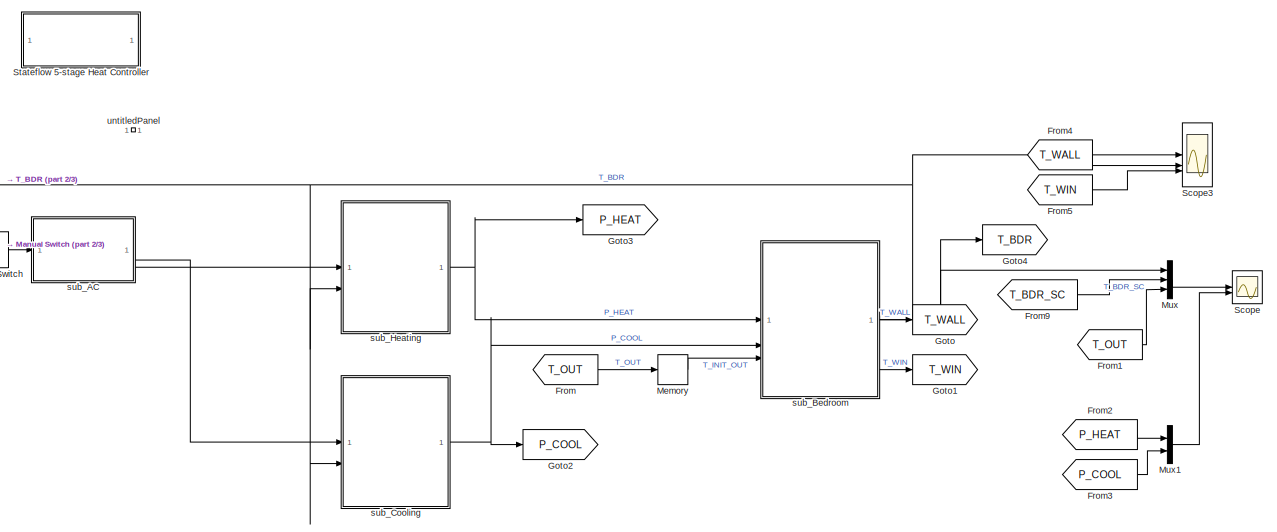
[diagram: root canvas - part 1/3, full width, top band]
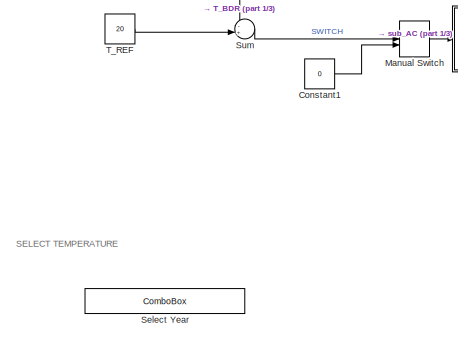
[diagram: root canvas - part 2/3, middle left region]
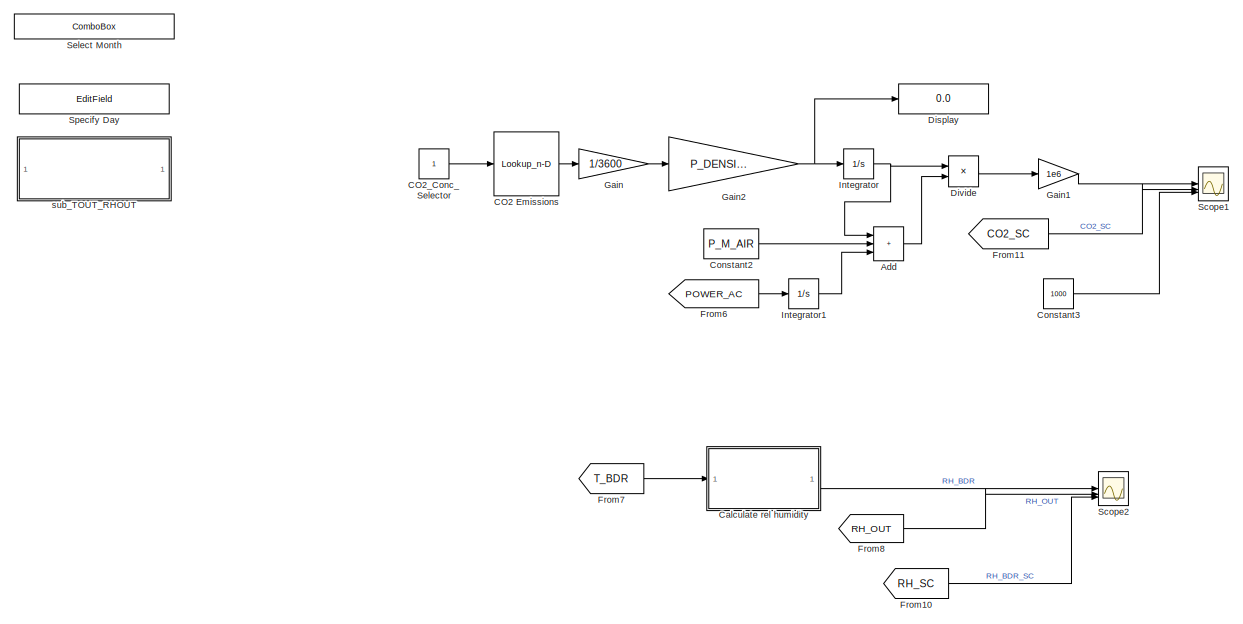
[diagram: root canvas - part 3/3, full width, bottom band]
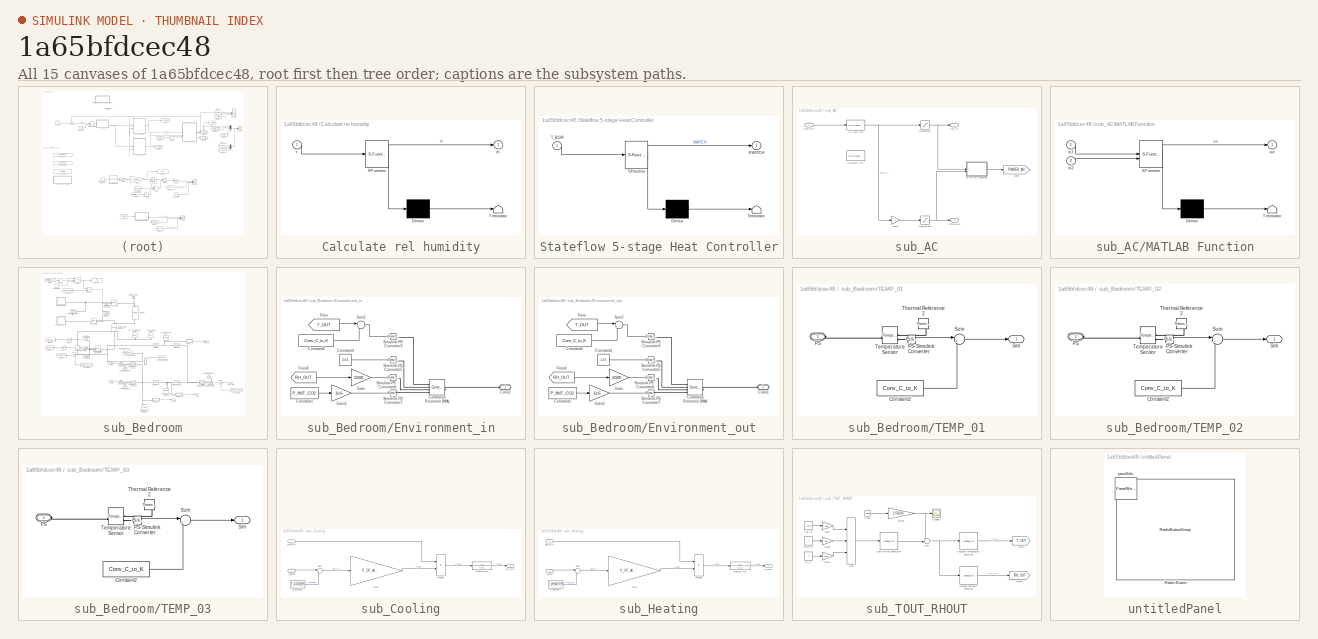
[diagram: thumbnail index - all 15 canvases of the model, root first then tree order]
MODEL slx_1a65bfdcec48
KIND model
CONFIG AbsTol = auto
CONFIG EnableMultiTasking = off
CONFIG FixedStep = 1
CONFIG InitFcn = PARAMETERS;
CONFIG MaxStep = auto
CONFIG MinStep = auto
CONFIG RelTol = 1e-3
CONFIG SampleTimeConstraint = Unconstrained
CONFIG SolverName = FixedStepAuto
CONFIG StartFcn = PARAMETERS;
CONFIG StartTime = 0.0
CONFIG StopTime = 3600*24*7
BLOCK [Sum] Add
  IconShape = rectangular
  Inputs = +++
BLOCK [Lookup_n-D] CO2 Emissions
  BreakpointsForDimension1 = TBL_CO2.Activity_ID
  InputPortMap = u0
  InternalRulePriority = Speed
  NumberOfTableDimensions = 1
  RndMeth = Simplest
  Table = TBL_CO2.CO2_Emiss_cmh
BLOCK [Constant] CO2_Conc_Selector
BLOCK [SubSystem] Calculate rel humidity
  ErrorFcn = Stateflow.Translate.translate
  PermitHierarchicalResolution = ExplicitOnly
  SFBlockType = MATLAB Function
  TreatAsAtomicUnit = on
BLOCK [Demux] Calculate rel humidity/ Demux 
  Outputs = 1
BLOCK [S-Function] Calculate rel humidity/ SFunction 
  EnableBusSupport = on
  FunctionName = sf_sfun
  Parameters = RH_INIT_BDR,T_INIT_BDR
  PortCounts = [1 2]
  SFcnIsStateOwnerBlock = off
  SFunctionDeploymentMode = off
  Tag = Stateflow S-Function 3
BLOCK [Terminator] Calculate rel humidity/ Terminator 
BLOCK [Outport] Calculate rel humidity/rh
BLOCK [Inport] Calculate rel humidity/t
BLOCK [Constant] Constant1
  Value = 0
BLOCK [Constant] Constant2
  Value = P_M_AIR
BLOCK [Constant] Constant3
  Value = 1000
BLOCK [Display] Display
  Decimation = 1
BLOCK [Product] Divide
  Inputs = */
BLOCK [From] From
  GotoTag = T_OUT
  TagVisibility = global
BLOCK [From] From1
  GotoTag = T_OUT
  TagVisibility = global
BLOCK [From] From10
  GotoTag = RH_SC
  NameLocation = top
  TagVisibility = global
BLOCK [From] From11
  GotoTag = CO2_SC
  NameLocation = top
  TagVisibility = global
BLOCK [From] From2
  GotoTag = P_HEAT
BLOCK [From] From3
  GotoTag = P_COOL
BLOCK [From] From4
  GotoTag = T_WALL
BLOCK [From] From5
  GotoTag = T_WIN
BLOCK [From] From6
  GotoTag = POWER_AC
  TagVisibility = global
BLOCK [From] From7
  GotoTag = T_BDR
BLOCK [From] From8
  GotoTag = RH_OUT
  TagVisibility = global
BLOCK [From] From9
  GotoTag = T_BDR_SC
  NameLocation = top
  TagVisibility = global
BLOCK [Gain] Gain
  Gain = 1/3600
BLOCK [Gain] Gain1
  Gain = 1e6
BLOCK [Gain] Gain2
  Gain = P_DENSITY_CO2
BLOCK [Goto] Goto
  GotoTag = T_WALL
BLOCK [Goto] Goto1
  GotoTag = T_WIN
BLOCK [Goto] Goto2
  GotoTag = P_COOL
BLOCK [Goto] Goto3
  GotoTag = P_HEAT
BLOCK [Goto] Goto4
  GotoTag = T_BDR
BLOCK [Integrator] Integrator
BLOCK [Integrator] Integrator1
BLOCK [ManualSwitch] Manual Switch
BLOCK [Memory] Memory
  InitialCondition = T_INIT_OUT
BLOCK [Mux] Mux
  DisplayOption = bar
  Inputs = 3
BLOCK [Mux] Mux1
  DisplayOption = bar
  Inputs = 2
BLOCK [Scope] Scope
  Floating = off
  NumInputPorts = 2
  ScopeSpecificationString = Simulink.scopes.TimeScopeBlockCfg('CurrentConfiguration', extmgr.ConfigurationSet(extmgr.Configuration('Core','General UI',true),extmgr.Configuration('Core','Source UI',true),extmgr.Configuration('Sources','WiredSimulink',true),extmgr.Configuration('Visuals','Time Domain',true,'SerializedDisplays',{struct('MinYLimReal','6.225','MaxYLimReal','37.975','YLabelReal','','MinYLimMag','6.225','MaxYLimMag...<+2164ch>
BLOCK [Scope] Scope1
  Floating = off
  NumInputPorts = 3
  ScopeSpecificationString = Simulink.scopes.TimeScopeBlockCfg('CurrentConfiguration', extmgr.ConfigurationSet(extmgr.Configuration('Core','General UI',true),extmgr.Configuration('Core','Source UI',true),extmgr.Configuration('Sources','WiredSimulink',true,'DataLoggingVariableName','ScopeData1'),extmgr.Configuration('Visuals','Time Domain',true,'SerializedDisplays',{struct('MinYLimReal','-576.04057','MaxYLimReal','5184.36516',...<+1474ch>
BLOCK [Scope] Scope2
  Floating = off
  NumInputPorts = 3
  ScopeSpecificationString = Simulink.scopes.TimeScopeBlockCfg('CurrentConfiguration', extmgr.ConfigurationSet(extmgr.Configuration('Core','General UI',true),extmgr.Configuration('Core','Source UI',true),extmgr.Configuration('Sources','WiredSimulink',true,'DataLoggingVariableName','ScopeData1'),extmgr.Configuration('Visuals','Time Domain',true,'SerializedDisplays',{struct('MinYLimReal','-2.97611','MaxYLimReal','102.5529','YLa...<+1500ch>
BLOCK [Scope] Scope3
  Floating = off
  NumInputPorts = 3
  ScopeSpecificationString = Simulink.scopes.TimeScopeBlockCfg('CurrentConfiguration', extmgr.ConfigurationSet(extmgr.Configuration('Core','General UI',true),extmgr.Configuration('Core','Source UI',true),extmgr.Configuration('Sources','WiredSimulink',true,'DataLoggingVariableName','ScopeData3'),extmgr.Configuration('Visuals','Time Domain',true,'SerializedDisplays',{struct('MinYLimReal','13.23048','MaxYLimReal','28.83399','YLa...<+1444ch>
BLOCK [ComboBox] Select Month
  LabelPosition = Hide
  NameLocation = top
  SelectedLabel = July
BLOCK [ComboBox] Select Year
  LabelPosition = Hide
  NameLocation = top
  SelectedLabel = 2023
BLOCK [EditField] Specify Day
  Alignment = Center
  LabelPosition = Hide
  NameLocation = top
  ShowInitialText = on
BLOCK [SubSystem] Stateflow 5-stage Heat Controller
  ErrorFcn = Stateflow.Translate.translate
  PermitHierarchicalResolution = ExplicitOnly
  SFBlockType = Chart
  TreatAsAtomicUnit = on
BLOCK [Demux] Stateflow 5-stage Heat Controller/ Demux 
  Outputs = 1
BLOCK [S-Function] Stateflow 5-stage Heat Controller/ SFunction 
  EnableBusSupport = on
  FunctionName = sf_sfun
  PortCounts = [1 2]
  SFcnIsStateOwnerBlock = off
  SFunctionDeploymentMode = off
  Tag = Stateflow S-Function 1
BLOCK [Terminator] Stateflow 5-stage Heat Controller/ Terminator 
BLOCK [Outport] Stateflow 5-stage Heat Controller/SWITCH
BLOCK [Inport] Stateflow 5-stage Heat Controller/T_BDR
BLOCK [Sum] Sum
  Inputs = -+|
BLOCK [Constant] T_REF
  Value = 20
BLOCK [SubSystem] sub_AC
BLOCK [Reference] sub_AC/AC Unit (PI)  REF=slpidlib/PID Controller
  LibrarySourceBlock = simulink/Continuous/PID Controller
  SourceBlock = slpidlib/PID Controller
  SourceType = PID 1dof
BLOCK [Reference] sub_AC/COOLER (PI)  REF=slpidlib/PID Controller
  Commented = on
  LibrarySourceBlock = simulink/Continuous/PID Controller
  SourceBlock = slpidlib/PID Controller
  SourceType = PID 1dof
BLOCK [Outport] sub_AC/COOLING
  Port = 2
BLOCK [Gain] sub_AC/Gain
  Gain = -1
BLOCK [Goto] sub_AC/Goto
  GotoTag = POWER_AC
  TagVisibility = global
BLOCK [Outport] sub_AC/HEAT
BLOCK [SubSystem] sub_AC/MATLAB Function
  ErrorFcn = Stateflow.Translate.translate
  PermitHierarchicalResolution = ExplicitOnly
  SFBlockType = MATLAB Function
  TreatAsAtomicUnit = on
BLOCK [Demux] sub_AC/MATLAB Function/ Demux 
  Outputs = 1
BLOCK [S-Function] sub_AC/MATLAB Function/ SFunction 
  EnableBusSupport = on
  FunctionName = sf_sfun
  PortCounts = [2 2]
  SFcnIsStateOwnerBlock = off
  SFunctionDeploymentMode = off
  Tag = Stateflow S-Function 2
BLOCK [Terminator] sub_AC/MATLAB Function/ Terminator 
BLOCK [Inport] sub_AC/MATLAB Function/in1
BLOCK [Inport] sub_AC/MATLAB Function/in2
  Port = 2
BLOCK [Outport] sub_AC/MATLAB Function/out
BLOCK [Inport] sub_AC/SWITCH
BLOCK [Saturate] sub_AC/Saturation
  LowerLimit = 0
  UpperLimit = 1
BLOCK [Saturate] sub_AC/Saturation1
  LowerLimit = 0
  UpperLimit = 1
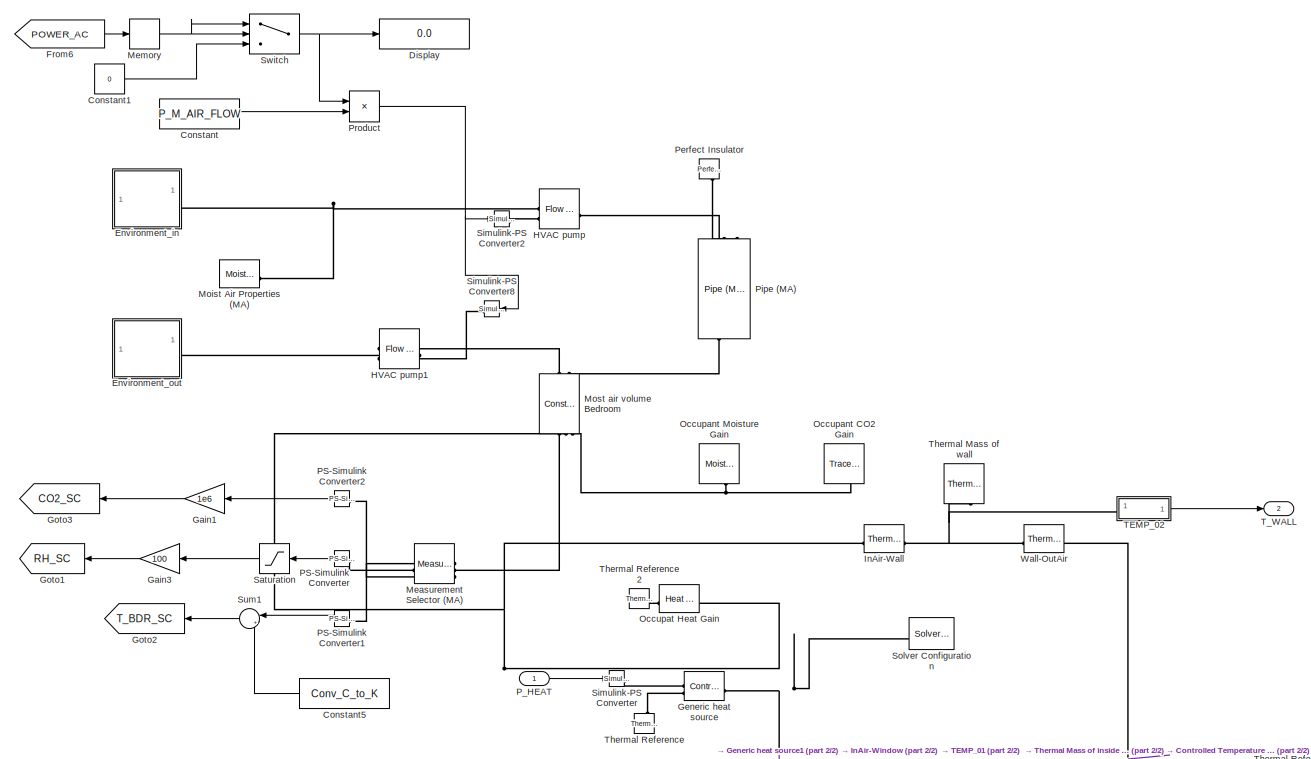
[diagram: sub_Bedroom - part 1/2, full width, middle band]
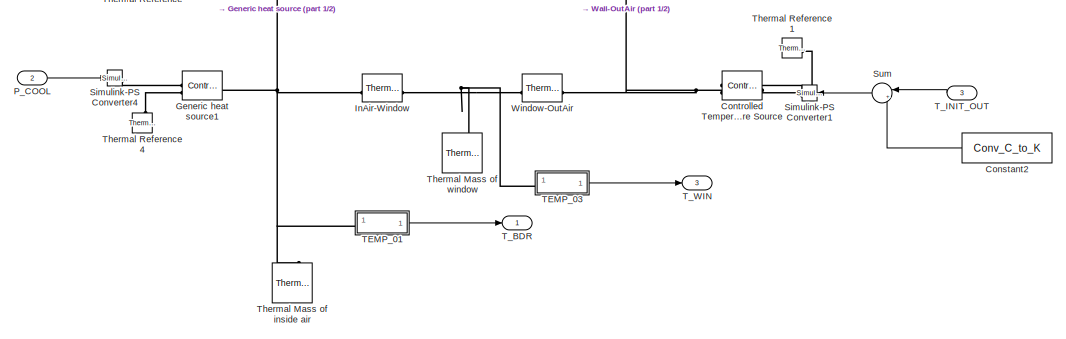
[diagram: sub_Bedroom - part 2/2, bottom center region]
BLOCK [SubSystem] sub_Bedroom
BLOCK [Constant] sub_Bedroom/Constant
  Value = P_M_AIR_FLOW
BLOCK [Constant] sub_Bedroom/Constant1
  Value = 0
BLOCK [Constant] sub_Bedroom/Constant2
  NameLocation = top
  Value = Conv_C_to_K
BLOCK [Constant] sub_Bedroom/Constant5
  NameLocation = top
  Value = Conv_C_to_K
BLOCK [Reference] sub_Bedroom/Controlled Temperature Source  REF=fl_lib/Thermal/Thermal Sources/Controlled
Temperature Source
  NameLocation = top
  SourceBlock = fl_lib/Thermal/Thermal Sources/Controlled\nTemperature Source
  SourceType = Controlled\nTemperature Source
BLOCK [Display] sub_Bedroom/Display
  Decimation = 1
BLOCK [SubSystem] sub_Bedroom/Environment_in
BLOCK [PMIOPort] sub_Bedroom/Environment_in/Conn1
  Side = Left
BLOCK [Constant] sub_Bedroom/Environment_in/Constant1
  Value = P_INIT_CO2
BLOCK [Constant] sub_Bedroom/Environment_in/Constant4
  Value = 1e5
BLOCK [Constant] sub_Bedroom/Environment_in/Constant6
  Value = Conv_C_to_K
BLOCK [Reference] sub_Bedroom/Environment_in/Controlled Reservoir (MA)  REF=fl_lib/Moist Air/Elements/Controlled Reservoir
(MA)
  SourceBlock = fl_lib/Moist Air/Elements/Controlled Reservoir\n(MA)
  SourceType = Controlled Reservoir\n(MA)
BLOCK [From] sub_Bedroom/Environment_in/From
  GotoTag = T_OUT
  TagVisibility = global
BLOCK [From] sub_Bedroom/Environment_in/From8
  GotoTag = RH_OUT
  TagVisibility = global
BLOCK [Gain] sub_Bedroom/Environment_in/Gain
  Gain = 1/100
BLOCK [Gain] sub_Bedroom/Environment_in/Gain2
  Gain = 1e-6
BLOCK [Reference] sub_Bedroom/Environment_in/Simulink-PS Converter3  REF=nesl_utility/Simulink-PS
Converter
  SourceBlock = nesl_utility/Simulink-PS\nConverter
  SourceType = Simulink-PS\nConverter
BLOCK [Reference] sub_Bedroom/Environment_in/Simulink-PS Converter5  REF=nesl_utility/Simulink-PS
Converter
  SourceBlock = nesl_utility/Simulink-PS\nConverter
  SourceType = Simulink-PS\nConverter
BLOCK [Reference] sub_Bedroom/Environment_in/Simulink-PS Converter6  REF=nesl_utility/Simulink-PS
Converter
  SourceBlock = nesl_utility/Simulink-PS\nConverter
  SourceType = Simulink-PS\nConverter
BLOCK [Reference] sub_Bedroom/Environment_in/Simulink-PS Converter7  REF=nesl_utility/Simulink-PS
Converter
  SourceBlock = nesl_utility/Simulink-PS\nConverter
  SourceType = Simulink-PS\nConverter
BLOCK [Sum] sub_Bedroom/Environment_in/Sum2
  Inputs = |++
BLOCK [SubSystem] sub_Bedroom/Environment_out
BLOCK [PMIOPort] sub_Bedroom/Environment_out/Conn1
  Side = Left
BLOCK [Constant] sub_Bedroom/Environment_out/Constant1
  Value = P_INIT_CO2
BLOCK [Constant] sub_Bedroom/Environment_out/Constant4
  Value = 1e5
BLOCK [Constant] sub_Bedroom/Environment_out/Constant6
  Value = Conv_C_to_K
BLOCK [Reference] sub_Bedroom/Environment_out/Controlled Reservoir (MA)  REF=fl_lib/Moist Air/Elements/Controlled Reservoir
(MA)
  SourceBlock = fl_lib/Moist Air/Elements/Controlled Reservoir\n(MA)
  SourceType = Controlled Reservoir\n(MA)
BLOCK [From] sub_Bedroom/Environment_out/From
  GotoTag = T_OUT
  TagVisibility = global
BLOCK [From] sub_Bedroom/Environment_out/From8
  GotoTag = RH_OUT
  TagVisibility = global
BLOCK [Gain] sub_Bedroom/Environment_out/Gain
  Gain = 1/100
BLOCK [Gain] sub_Bedroom/Environment_out/Gain2
  Gain = 1e-6
BLOCK [Reference] sub_Bedroom/Environment_out/Simulink-PS Converter3  REF=nesl_utility/Simulink-PS
Converter
  SourceBlock = nesl_utility/Simulink-PS\nConverter
  SourceType = Simulink-PS\nConverter
BLOCK [Reference] sub_Bedroom/Environment_out/Simulink-PS Converter5  REF=nesl_utility/Simulink-PS
Converter
  SourceBlock = nesl_utility/Simulink-PS\nConverter
  SourceType = Simulink-PS\nConverter
BLOCK [Reference] sub_Bedroom/Environment_out/Simulink-PS Converter6  REF=nesl_utility/Simulink-PS
Converter
  SourceBlock = nesl_utility/Simulink-PS\nConverter
  SourceType = Simulink-PS\nConverter
BLOCK [Reference] sub_Bedroom/Environment_out/Simulink-PS Converter7  REF=nesl_utility/Simulink-PS
Converter
  SourceBlock = nesl_utility/Simulink-PS\nConverter
  SourceType = Simulink-PS\nConverter
BLOCK [Sum] sub_Bedroom/Environment_out/Sum2
  Inputs = |++
BLOCK [From] sub_Bedroom/From6
  GotoTag = POWER_AC
  TagVisibility = global
BLOCK [Gain] sub_Bedroom/Gain1
  Gain = 1e6
BLOCK [Gain] sub_Bedroom/Gain3
  Gain = 100
BLOCK [Reference] sub_Bedroom/Generic heat source  REF=fl_lib/Thermal/Thermal Sources/Controlled Heat Flow
Rate Source
  SourceBlock = fl_lib/Thermal/Thermal Sources/Controlled Heat Flow\nRate Source
  SourceType = Controlled Heat Flow\nRate Source
BLOCK [Reference] sub_Bedroom/Generic heat source1  REF=fl_lib/Thermal/Thermal Sources/Controlled Heat Flow
Rate Source
  SourceBlock = fl_lib/Thermal/Thermal Sources/Controlled Heat Flow\nRate Source
  SourceType = Controlled Heat Flow\nRate Source
BLOCK [Goto] sub_Bedroom/Goto1
  GotoTag = RH_SC
  NameLocation = top
  TagVisibility = global
BLOCK [Goto] sub_Bedroom/Goto2
  GotoTag = T_BDR_SC
  NameLocation = top
  TagVisibility = global
BLOCK [Goto] sub_Bedroom/Goto3
  GotoTag = CO2_SC
  NameLocation = top
  TagVisibility = global
BLOCK [Reference] sub_Bedroom/HVAC pump  REF=fl_lib/Moist Air/Sources/Flow Rate Source
(MA)
  SourceBlock = fl_lib/Moist Air/Sources/Flow Rate Source\n(MA)
  SourceType = Flow Rate Source\n(MA)
BLOCK [Reference] sub_Bedroom/HVAC pump1  REF=fl_lib/Moist Air/Sources/Flow Rate Source
(MA)
  NameLocation = top
  SourceBlock = fl_lib/Moist Air/Sources/Flow Rate Source\n(MA)
  SourceType = Flow Rate Source\n(MA)
BLOCK [Reference] sub_Bedroom/InAir-Wall  REF=fl_lib/Thermal/Thermal Elements/Thermal Resistance
  SourceBlock = fl_lib/Thermal/Thermal Elements/Thermal Resistance
  SourceType = Thermal Resistance
BLOCK [Reference] sub_Bedroom/InAir-Window  REF=fl_lib/Thermal/Thermal Elements/Thermal Resistance
  SourceBlock = fl_lib/Thermal/Thermal Elements/Thermal Resistance
  SourceType = Thermal Resistance
BLOCK [Reference] sub_Bedroom/Measurement Selector (MA)  REF=fl_lib/Moist Air/Sensors/Measurement Selector
(MA)
  NameLocation = top
  SourceBlock = fl_lib/Moist Air/Sensors/Measurement Selector\n(MA)
  SourceType = Measurement Selector\n(MA)
BLOCK [Memory] sub_Bedroom/Memory
BLOCK [Reference] sub_Bedroom/Moist Air Properties (MA)  REF=fl_lib/Moist Air/Utilities/Moist Air Properties
(MA)
  SourceBlock = fl_lib/Moist Air/Utilities/Moist Air Properties\n(MA)
  SourceType = Moist Air Properties\n(MA)
BLOCK [Reference] sub_Bedroom/Most air volume Bedroom  REF=fl_lib/Moist Air/Elements/Constant Volume
Chamber (MA)
  NameLocation = right
  SourceBlock = fl_lib/Moist Air/Elements/Constant Volume\nChamber (MA)
  SourceType = Constant Volume\nChamber (MA)
BLOCK [Reference] sub_Bedroom/Occupant CO2 Gain  REF=fl_lib/Moist Air/Sources/Moisture & Trace Gas
Sources/Trace Gas Source
(MA)
  NameLocation = left
  SourceBlock = fl_lib/Moist Air/Sources/Moisture & Trace Gas\nSources/Trace Gas Source\n(MA)
  SourceType = Trace Gas Source\n(MA)
BLOCK [Reference] sub_Bedroom/Occupant Moisture Gain  REF=fl_lib/Moist Air/Sources/Moisture & Trace Gas
Sources/Moisture Source (MA)
  NameLocation = left
  SourceBlock = fl_lib/Moist Air/Sources/Moisture & Trace Gas\nSources/Moisture Source (MA)
  SourceType = Moisture Source (MA)
BLOCK [Reference] sub_Bedroom/Occupat Heat Gain  REF=fl_lib/Thermal/Thermal Sources/Heat Flow Rate
Source
  SourceBlock = fl_lib/Thermal/Thermal Sources/Heat Flow Rate\nSource
  SourceType = Heat Flow Rate\nSource
BLOCK [Reference] sub_Bedroom/PS-Simulink Converter  REF=nesl_utility/PS-Simulink
Converter
  NameLocation = top
  SourceBlock = nesl_utility/PS-Simulink\nConverter
  SourceType = PS-Simulink\nConverter
BLOCK [Reference] sub_Bedroom/PS-Simulink Converter1  REF=nesl_utility/PS-Simulink
Converter
  NameLocation = top
  SourceBlock = nesl_utility/PS-Simulink\nConverter
  SourceType = PS-Simulink\nConverter
BLOCK [Reference] sub_Bedroom/PS-Simulink Converter2  REF=nesl_utility/PS-Simulink
Converter
  NameLocation = top
  SourceBlock = nesl_utility/PS-Simulink\nConverter
  SourceType = PS-Simulink\nConverter
BLOCK [Inport] sub_Bedroom/P_COOL
  Port = 2
BLOCK [Inport] sub_Bedroom/P_HEAT
BLOCK [Reference] sub_Bedroom/Perfect Insulator  REF=fl_lib/Thermal/Thermal Elements/Perfect Insulator
  NameLocation = left
  SourceBlock = fl_lib/Thermal/Thermal Elements/Perfect Insulator
  SourceType = Perfect Insulator
BLOCK [Reference] sub_Bedroom/Pipe (MA)  REF=fl_lib/Moist Air/Elements/Pipe (MA)
  NameLocation = left
  SourceBlock = fl_lib/Moist Air/Elements/Pipe (MA)
  SourceType = Pipe (MA)
BLOCK [Product] sub_Bedroom/Product
BLOCK [Saturate] sub_Bedroom/Saturation
  LowerLimit = 0
  NameLocation = top
  UpperLimit = 1
BLOCK [Reference] sub_Bedroom/Simulink-PS Converter  REF=nesl_utility/Simulink-PS
Converter
  SourceBlock = nesl_utility/Simulink-PS\nConverter
  SourceType = Simulink-PS\nConverter
BLOCK [Reference] sub_Bedroom/Simulink-PS Converter1  REF=nesl_utility/Simulink-PS
Converter
  NameLocation = top
  SourceBlock = nesl_utility/Simulink-PS\nConverter
  SourceType = Simulink-PS\nConverter
BLOCK [Reference] sub_Bedroom/Simulink-PS Converter2  REF=nesl_utility/Simulink-PS
Converter
  SourceBlock = nesl_utility/Simulink-PS\nConverter
  SourceType = Simulink-PS\nConverter
BLOCK [Reference] sub_Bedroom/Simulink-PS Converter4  REF=nesl_utility/Simulink-PS
Converter
  SourceBlock = nesl_utility/Simulink-PS\nConverter
  SourceType = Simulink-PS\nConverter
BLOCK [Reference] sub_Bedroom/Simulink-PS Converter8  REF=nesl_utility/Simulink-PS
Converter
  NameLocation = top
  SourceBlock = nesl_utility/Simulink-PS\nConverter
  SourceType = Simulink-PS\nConverter
BLOCK [Reference] sub_Bedroom/Solver Configuration  REF=nesl_utility/Solver
Configuration
  NameLocation = top
  SourceBlock = nesl_utility/Solver\nConfiguration
  SourceType = Solver\nConfiguration
BLOCK [Sum] sub_Bedroom/Sum
  Inputs = |++
  NameLocation = top
BLOCK [Sum] sub_Bedroom/Sum1
  Inputs = |+-
  NameLocation = top
BLOCK [Switch] sub_Bedroom/Switch
  Criteria = u2 > Threshold
  InputSameDT = off
  SaturateOnIntegerOverflow = off
BLOCK [SubSystem] sub_Bedroom/TEMP_01
BLOCK [Constant] sub_Bedroom/TEMP_01/Constant2
  Value = Conv_C_to_K
BLOCK [PMIOPort] sub_Bedroom/TEMP_01/PS
  Side = Left
BLOCK [Reference] sub_Bedroom/TEMP_01/PS-Simulink Converter  REF=nesl_utility/PS-Simulink
Converter
  SourceBlock = nesl_utility/PS-Simulink\nConverter
  SourceType = PS-Simulink\nConverter
BLOCK [Outport] sub_Bedroom/TEMP_01/Sim
BLOCK [Sum] sub_Bedroom/TEMP_01/Sum
  Inputs = |+-
BLOCK [Reference] sub_Bedroom/TEMP_01/Temperature Sensor  REF=fl_lib/Thermal/Thermal Sensors/Temperature Sensor
  SourceBlock = fl_lib/Thermal/Thermal Sensors/Temperature Sensor
  SourceType = Temperature Sensor
BLOCK [Reference] sub_Bedroom/TEMP_01/Thermal Reference2  REF=fl_lib/Thermal/Thermal Elements/Thermal Reference
  NameLocation = top
  SourceBlock = fl_lib/Thermal/Thermal Elements/Thermal Reference
  SourceType = Thermal Reference
BLOCK [SubSystem] sub_Bedroom/TEMP_02
BLOCK [Constant] sub_Bedroom/TEMP_02/Constant2
  Value = Conv_C_to_K
BLOCK [PMIOPort] sub_Bedroom/TEMP_02/PS
  Side = Left
BLOCK [Reference] sub_Bedroom/TEMP_02/PS-Simulink Converter  REF=nesl_utility/PS-Simulink
Converter
  SourceBlock = nesl_utility/PS-Simulink\nConverter
  SourceType = PS-Simulink\nConverter
BLOCK [Outport] sub_Bedroom/TEMP_02/Sim
BLOCK [Sum] sub_Bedroom/TEMP_02/Sum
  Inputs = |+-
BLOCK [Reference] sub_Bedroom/TEMP_02/Temperature Sensor  REF=fl_lib/Thermal/Thermal Sensors/Temperature Sensor
  SourceBlock = fl_lib/Thermal/Thermal Sensors/Temperature Sensor
  SourceType = Temperature Sensor
BLOCK [Reference] sub_Bedroom/TEMP_02/Thermal Reference2  REF=fl_lib/Thermal/Thermal Elements/Thermal Reference
  NameLocation = top
  SourceBlock = fl_lib/Thermal/Thermal Elements/Thermal Reference
  SourceType = Thermal Reference
BLOCK [SubSystem] sub_Bedroom/TEMP_03
BLOCK [Constant] sub_Bedroom/TEMP_03/Constant2
  Value = Conv_C_to_K
BLOCK [PMIOPort] sub_Bedroom/TEMP_03/PS
  Side = Left
BLOCK [Reference] sub_Bedroom/TEMP_03/PS-Simulink Converter  REF=nesl_utility/PS-Simulink
Converter
  SourceBlock = nesl_utility/PS-Simulink\nConverter
  SourceType = PS-Simulink\nConverter
BLOCK [Outport] sub_Bedroom/TEMP_03/Sim
BLOCK [Sum] sub_Bedroom/TEMP_03/Sum
  Inputs = |+-
BLOCK [Reference] sub_Bedroom/TEMP_03/Temperature Sensor  REF=fl_lib/Thermal/Thermal Sensors/Temperature Sensor
  SourceBlock = fl_lib/Thermal/Thermal Sensors/Temperature Sensor
  SourceType = Temperature Sensor
BLOCK [Reference] sub_Bedroom/TEMP_03/Thermal Reference2  REF=fl_lib/Thermal/Thermal Elements/Thermal Reference
  NameLocation = top
  SourceBlock = fl_lib/Thermal/Thermal Elements/Thermal Reference
  SourceType = Thermal Reference
BLOCK [Outport] sub_Bedroom/T_BDR
BLOCK [Inport] sub_Bedroom/T_INIT_OUT
  Port = 3
BLOCK [Outport] sub_Bedroom/T_WALL
  Port = 2
BLOCK [Outport] sub_Bedroom/T_WIN
  Port = 3
BLOCK [Reference] sub_Bedroom/Thermal Mass of inside air  REF=fl_lib/Thermal/Thermal Elements/Thermal Mass
  SourceBlock = fl_lib/Thermal/Thermal Elements/Thermal Mass
  SourceType = Thermal Mass
BLOCK [Reference] sub_Bedroom/Thermal Mass of wall  REF=fl_lib/Thermal/Thermal Elements/Thermal Mass
  NameLocation = top
  SourceBlock = fl_lib/Thermal/Thermal Elements/Thermal Mass
  SourceType = Thermal Mass
BLOCK [Reference] sub_Bedroom/Thermal Mass of window  REF=fl_lib/Thermal/Thermal Elements/Thermal Mass
  SourceBlock = fl_lib/Thermal/Thermal Elements/Thermal Mass
  SourceType = Thermal Mass
BLOCK [Reference] sub_Bedroom/Thermal Reference  REF=fl_lib/Thermal/Thermal Elements/Thermal Reference
  NameLocation = right
  SourceBlock = fl_lib/Thermal/Thermal Elements/Thermal Reference
  SourceType = Thermal Reference
BLOCK [Reference] sub_Bedroom/Thermal Reference1  REF=fl_lib/Thermal/Thermal Elements/Thermal Reference
  NameLocation = top
  SourceBlock = fl_lib/Thermal/Thermal Elements/Thermal Reference
  SourceType = Thermal Reference
BLOCK [Reference] sub_Bedroom/Thermal Reference2  REF=fl_lib/Thermal/Thermal Elements/Thermal Reference
  SourceBlock = fl_lib/Thermal/Thermal Elements/Thermal Reference
  SourceType = Thermal Reference
BLOCK [Reference] sub_Bedroom/Thermal Reference4  REF=fl_lib/Thermal/Thermal Elements/Thermal Reference
  NameLocation = right
  SourceBlock = fl_lib/Thermal/Thermal Elements/Thermal Reference
  SourceType = Thermal Reference
BLOCK [Reference] sub_Bedroom/Wall-OutAir  REF=fl_lib/Thermal/Thermal Elements/Thermal Resistance
  SourceBlock = fl_lib/Thermal/Thermal Elements/Thermal Resistance
  SourceType = Thermal Resistance
BLOCK [Reference] sub_Bedroom/Window-OutAir  REF=fl_lib/Thermal/Thermal Elements/Thermal Resistance
  SourceBlock = fl_lib/Thermal/Thermal Elements/Thermal Resistance
  SourceType = Thermal Resistance
BLOCK [SubSystem] sub_Cooling
BLOCK [Constant] sub_Cooling/Constant2
  Value = T_COOLER
BLOCK [Gain] sub_Cooling/Gain
  Gain = P_CP_AIR*P_HEATER_AIR_FLOW
BLOCK [Outport] sub_Cooling/P_COOL
BLOCK [Product] sub_Cooling/Product
BLOCK [Inport] sub_Cooling/SWITCH
BLOCK [Sum] sub_Cooling/Sum
  Inputs = |-+
BLOCK [Inport] sub_Cooling/T_BDR
  Port = 2
BLOCK [TransferFcn] sub_Cooling/Transfer Fcn
  Denominator = [1 1]
BLOCK [SubSystem] sub_Heating
BLOCK [Constant] sub_Heating/Constant2
  Value = T_HEATER
BLOCK [Gain] sub_Heating/Gain
  Gain = P_CP_AIR*P_HEATER_AIR_FLOW
BLOCK [Outport] sub_Heating/P_HEAT
BLOCK [Product] sub_Heating/Product
BLOCK [Inport] sub_Heating/SWITCH
BLOCK [Sum] sub_Heating/Sum
  Inputs = |-+
BLOCK [Inport] sub_Heating/T_BDR
  Port = 2
BLOCK [TransferFcn] sub_Heating/Transfer Fcn
  Denominator = [1 1]
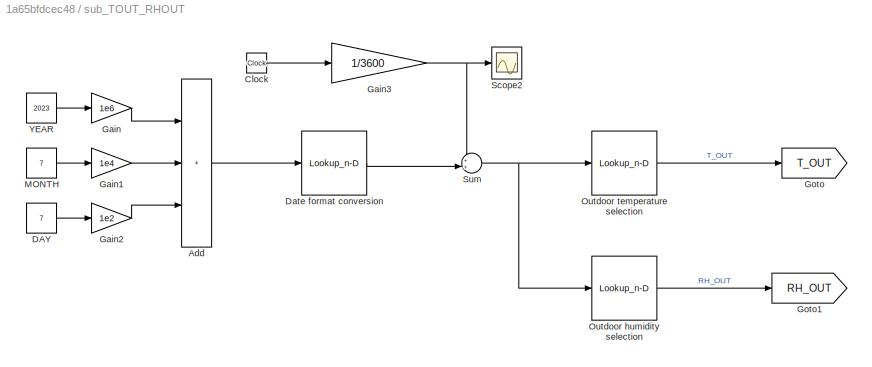
BLOCK [SubSystem] sub_TOUT_RHOUT
BLOCK [Sum] sub_TOUT_RHOUT/Add
  IconShape = rectangular
  Inputs = +++
BLOCK [Clock] sub_TOUT_RHOUT/Clock
BLOCK [Constant] sub_TOUT_RHOUT/DAY
  Value = 7
BLOCK [Lookup_n-D] sub_TOUT_RHOUT/Date format conversion
  BreakpointsForDimension1 = TBL_TEMP.DATE_yyyymmddhh
  InputPortMap = u0
  InternalRulePriority = Speed
  NumberOfTableDimensions = 1
  RndMeth = Simplest
  Table = TBL_TEMP.DATE_sec
BLOCK [Gain] sub_TOUT_RHOUT/Gain
  Gain = 1e6
BLOCK [Gain] sub_TOUT_RHOUT/Gain1
  Gain = 1e4
BLOCK [Gain] sub_TOUT_RHOUT/Gain2
  Gain = 1e2
BLOCK [Gain] sub_TOUT_RHOUT/Gain3
  Gain = 1/3600
BLOCK [Goto] sub_TOUT_RHOUT/Goto
  GotoTag = T_OUT
  TagVisibility = global
BLOCK [Goto] sub_TOUT_RHOUT/Goto1
  GotoTag = RH_OUT
  TagVisibility = global
BLOCK [Constant] sub_TOUT_RHOUT/MONTH
  Value = 7
BLOCK [Lookup_n-D] sub_TOUT_RHOUT/Outdoor humidity selection
  BreakpointsForDimension1 = TBL_TEMP.DATE_sec
  InputPortMap = u0
  InternalRulePriority = Speed
  NumberOfTableDimensions = 1
  RndMeth = Simplest
  Table = TBL_TEMP.RM_p100
BLOCK [Lookup_n-D] sub_TOUT_RHOUT/Outdoor temperature selection
  BreakpointsForDimension1 = TBL_TEMP.DATE_sec
  InputPortMap = u0
  InternalRulePriority = Speed
  NumberOfTableDimensions = 1
  RndMeth = Simplest
  Table = TBL_TEMP.T_C
BLOCK [Scope] sub_TOUT_RHOUT/Scope2
  Floating = off
  NumInputPorts = 1
  ScopeSpecificationString = Simulink.scopes.TimeScopeBlockCfg('CurrentConfiguration', extmgr.ConfigurationSet(extmgr.Configuration('Core','General UI',true),extmgr.Configuration('Core','Source UI',true),extmgr.Configuration('Sources','WiredSimulink',true,'DataLoggingVariableName','ScopeData1'),extmgr.Configuration('Visuals','Time Domain',true,'SerializedDisplays',{struct('MinYLimReal','-1.50003','MaxYLimReal','13.50031','YLa...<+1373ch>
BLOCK [Sum] sub_TOUT_RHOUT/Sum
  Inputs = ++|
BLOCK [Constant] sub_TOUT_RHOUT/YEAR
  Value = 2023
BLOCK [SubSystem] untitledPanel
  IsWebBlockPanel = on
  Tag = HiddenForWebPanel
BLOCK [RadioButtonGroup] untitledPanel/Radio Button
  ButtonGroupName = Group
  PanelInfo = {"addnFilesFolder":"","height":230,"includeDebugPackages":false,"left":18,"outputFolder":"","panelId":"panelId-a10107d6-1e7d-451d-956e-0df6eada92c1","popoutMode":"","standaloneTitle":"","top":18,"type":"panelChild","version":"2019b","width":270,"zIndex":1500002}
  SelectedLabel = Label3
  Tag = HiddenForWebPanel
BLOCK [PanelWebBlock] untitledPanel/panelInfo
  PanelInfo = {"addnFilesFolder":"","compacted":false,"height":270,"includeDebugPackages":false,"isActiveTab":true,"left":296,"name":"Panel","outputFolder":"","panelId":"panelId-a10107d6-1e7d-451d-956e-0df6eada92c1","popoutData":{"height":334,"left":361,"maximized":false,"top":306,"width":324},"popoutMode":"windowHidden","standaloneTitle":"","tabIndex":0,"tabbedSetId":"tabbedSet8433950298","top":135,"type":"pan...<+66ch>
  Tag = HiddenForWebPanel
ANNOTATION (root): SELECT TEMPERATURE
LINE Add:1 -> Divide:2
LINE CO2 Emissions:1 -> Gain:1
LINE CO2_Conc_Selector:1 -> CO2 Emissions:1
LINE Calculate rel humidity:1 -> Scope2:1
LINE Constant1:1 -> Manual Switch:2
LINE Constant2:1 -> Add:2
LINE Constant3:1 -> Scope1:3
LINE Divide:1 -> Gain1:1
LINE From10:1 -> Scope2:3
LINE From11:1 -> Scope1:2
LINE From1:1 -> Mux:3
LINE From2:1 -> Mux1:1
LINE From3:1 -> Mux1:2
LINE From4:1 -> Scope3:2
LINE From5:1 -> Scope3:3
LINE From6:1 -> Integrator1:1
LINE From7:1 -> Calculate rel humidity:1
LINE From8:1 -> Scope2:2
LINE From9:1 -> Mux:2
LINE From:1 -> Memory:1
LINE Gain1:1 -> Scope1:1
NET Gain2:1 -> Display:1, Integrator:1
LINE Gain:1 -> Gain2:1
LINE Integrator1:1 -> Add:3
NET Integrator:1 -> Add:1, Divide:1
LINE Manual Switch:1 -> sub_AC:1
LINE Memory:1 -> sub_Bedroom:3
LINE Mux1:1 -> Scope:2
LINE Mux:1 -> Scope:1
LINE Sum:1 -> Manual Switch:1
LINE T_REF:1 -> Sum:2
NET sub_AC/AC Unit (PI):1 -> sub_AC/Gain:1, sub_AC/Saturation:1
LINE sub_AC/Gain:1 -> sub_AC/Saturation1:1
LINE sub_AC/MATLAB Function:1 -> sub_AC/Goto:1
LINE sub_AC/SWITCH:1 -> sub_AC/AC Unit (PI):1
NET sub_AC/Saturation1:1 -> sub_AC/COOLING:1, sub_AC/MATLAB Function:2
NET sub_AC/Saturation:1 -> sub_AC/HEAT:1, sub_AC/MATLAB Function:1
LINE sub_AC:1 -> sub_Heating:1
LINE sub_AC:2 -> sub_Cooling:1
LINE sub_Bedroom/Constant1:1 -> sub_Bedroom/Switch:3
LINE sub_Bedroom/Constant2:1 -> sub_Bedroom/Sum:2
LINE sub_Bedroom/Constant5:1 -> sub_Bedroom/Sum1:2
LINE sub_Bedroom/Constant:1 -> sub_Bedroom/Product:2
LINE sub_Bedroom/Environment_in/Constant1:1 -> sub_Bedroom/Environment_in/Gain2:1
LINE sub_Bedroom/Environment_in/Constant4:1 -> sub_Bedroom/Environment_in/Simulink-PS Converter5:1
LINE sub_Bedroom/Environment_in/Constant6:1 -> sub_Bedroom/Environment_in/Sum2:2
LINE sub_Bedroom/Environment_in/From8:1 -> sub_Bedroom/Environment_in/Gain:1
LINE sub_Bedroom/Environment_in/From:1 -> sub_Bedroom/Environment_in/Sum2:1
LINE sub_Bedroom/Environment_in/Gain2:1 -> sub_Bedroom/Environment_in/Simulink-PS Converter7:1
LINE sub_Bedroom/Environment_in/Gain:1 -> sub_Bedroom/Environment_in/Simulink-PS Converter6:1
LINE sub_Bedroom/Environment_in/Sum2:1 -> sub_Bedroom/Environment_in/Simulink-PS Converter3:1
LINE sub_Bedroom/Environment_out/Constant1:1 -> sub_Bedroom/Environment_out/Gain2:1
LINE sub_Bedroom/Environment_out/Constant4:1 -> sub_Bedroom/Environment_out/Simulink-PS Converter5:1
LINE sub_Bedroom/Environment_out/Constant6:1 -> sub_Bedroom/Environment_out/Sum2:2
LINE sub_Bedroom/Environment_out/From8:1 -> sub_Bedroom/Environment_out/Gain:1
LINE sub_Bedroom/Environment_out/From:1 -> sub_Bedroom/Environment_out/Sum2:1
LINE sub_Bedroom/Environment_out/Gain2:1 -> sub_Bedroom/Environment_out/Simulink-PS Converter7:1
LINE sub_Bedroom/Environment_out/Gain:1 -> sub_Bedroom/Environment_out/Simulink-PS Converter6:1
LINE sub_Bedroom/Environment_out/Sum2:1 -> sub_Bedroom/Environment_out/Simulink-PS Converter3:1
LINE sub_Bedroom/From6:1 -> sub_Bedroom/Memory:1
LINE sub_Bedroom/Gain1:1 -> sub_Bedroom/Goto3:1
LINE sub_Bedroom/Gain3:1 -> sub_Bedroom/Goto1:1
NET sub_Bedroom/Memory:1 -> sub_Bedroom/Switch:1, sub_Bedroom/Switch:2
LINE sub_Bedroom/PS-Simulink Converter1:1 -> sub_Bedroom/Sum1:1
LINE sub_Bedroom/PS-Simulink Converter2:1 -> sub_Bedroom/Gain1:1
LINE sub_Bedroom/PS-Simulink Converter:1 -> sub_Bedroom/Saturation:1
LINE sub_Bedroom/P_COOL:1 -> sub_Bedroom/Simulink-PS Converter4:1
LINE sub_Bedroom/P_HEAT:1 -> sub_Bedroom/Simulink-PS Converter:1
NET sub_Bedroom/Product:1 -> sub_Bedroom/Simulink-PS Converter2:1, sub_Bedroom/Simulink-PS Converter8:1
LINE sub_Bedroom/Saturation:1 -> sub_Bedroom/Gain3:1
LINE sub_Bedroom/Sum1:1 -> sub_Bedroom/Goto2:1
LINE sub_Bedroom/Sum:1 -> sub_Bedroom/Simulink-PS Converter1:1
NET sub_Bedroom/Switch:1 -> sub_Bedroom/Display:1, sub_Bedroom/Product:1
LINE sub_Bedroom/TEMP_01/Constant2:1 -> sub_Bedroom/TEMP_01/Sum:2
LINE sub_Bedroom/TEMP_01/PS-Simulink Converter:1 -> sub_Bedroom/TEMP_01/Sum:1
LINE sub_Bedroom/TEMP_01/Sum:1 -> sub_Bedroom/TEMP_01/Sim:1
LINE sub_Bedroom/TEMP_01:1 -> sub_Bedroom/T_BDR:1
LINE sub_Bedroom/TEMP_02/Constant2:1 -> sub_Bedroom/TEMP_02/Sum:2
LINE sub_Bedroom/TEMP_02/PS-Simulink Converter:1 -> sub_Bedroom/TEMP_02/Sum:1
LINE sub_Bedroom/TEMP_02/Sum:1 -> sub_Bedroom/TEMP_02/Sim:1
LINE sub_Bedroom/TEMP_02:1 -> sub_Bedroom/T_WALL:1
LINE sub_Bedroom/TEMP_03/Constant2:1 -> sub_Bedroom/TEMP_03/Sum:2
LINE sub_Bedroom/TEMP_03/PS-Simulink Converter:1 -> sub_Bedroom/TEMP_03/Sum:1
LINE sub_Bedroom/TEMP_03/Sum:1 -> sub_Bedroom/TEMP_03/Sim:1
LINE sub_Bedroom/TEMP_03:1 -> sub_Bedroom/T_WIN:1
LINE sub_Bedroom/T_INIT_OUT:1 -> sub_Bedroom/Sum:1
NET sub_Bedroom:1 -> Goto4:1, Mux:1, Scope3:1, Sum:1, sub_Cooling:2, sub_Heating:2
LINE sub_Bedroom:2 -> Goto:1
LINE sub_Bedroom:3 -> Goto1:1
LINE sub_Cooling/Constant2:1 -> sub_Cooling/Sum:2
LINE sub_Cooling/Gain:1 -> sub_Cooling/Product:2
LINE sub_Cooling/Product:1 -> sub_Cooling/Transfer Fcn:1
LINE sub_Cooling/SWITCH:1 -> sub_Cooling/Product:1
LINE sub_Cooling/Sum:1 -> sub_Cooling/Gain:1
LINE sub_Cooling/T_BDR:1 -> sub_Cooling/Sum:1
LINE sub_Cooling/Transfer Fcn:1 -> sub_Cooling/P_COOL:1
NET sub_Cooling:1 -> Goto2:1, sub_Bedroom:2
LINE sub_Heating/Constant2:1 -> sub_Heating/Sum:2
LINE sub_Heating/Gain:1 -> sub_Heating/Product:2
LINE sub_Heating/Product:1 -> sub_Heating/Transfer Fcn:1
LINE sub_Heating/SWITCH:1 -> sub_Heating/Product:1
LINE sub_Heating/Sum:1 -> sub_Heating/Gain:1
LINE sub_Heating/T_BDR:1 -> sub_Heating/Sum:1
LINE sub_Heating/Transfer Fcn:1 -> sub_Heating/P_HEAT:1
NET sub_Heating:1 -> Goto3:1, sub_Bedroom:1
LINE sub_TOUT_RHOUT/Add:1 -> sub_TOUT_RHOUT/Date format conversion:1
LINE sub_TOUT_RHOUT/Clock:1 -> sub_TOUT_RHOUT/Gain3:1
LINE sub_TOUT_RHOUT/DAY:1 -> sub_TOUT_RHOUT/Gain2:1
LINE sub_TOUT_RHOUT/Date format conversion:1 -> sub_TOUT_RHOUT/Sum:2
LINE sub_TOUT_RHOUT/Gain1:1 -> sub_TOUT_RHOUT/Add:2
LINE sub_TOUT_RHOUT/Gain2:1 -> sub_TOUT_RHOUT/Add:3
NET sub_TOUT_RHOUT/Gain3:1 -> sub_TOUT_RHOUT/Scope2:1, sub_TOUT_RHOUT/Sum:1
LINE sub_TOUT_RHOUT/Gain:1 -> sub_TOUT_RHOUT/Add:1
LINE sub_TOUT_RHOUT/MONTH:1 -> sub_TOUT_RHOUT/Gain1:1
LINE sub_TOUT_RHOUT/Outdoor humidity selection:1 -> sub_TOUT_RHOUT/Goto1:1
LINE sub_TOUT_RHOUT/Outdoor temperature selection:1 -> sub_TOUT_RHOUT/Goto:1
NET sub_TOUT_RHOUT/Sum:1 -> sub_TOUT_RHOUT/Outdoor humidity selection:1, sub_TOUT_RHOUT/Outdoor temperature selection:1
LINE sub_TOUT_RHOUT/YEAR:1 -> sub_TOUT_RHOUT/Gain:1
PNET net1: sub_Bedroom/Controlled Temperature Source:LConn1 -- sub_Bedroom/Wall-OutAir:RConn1 -- sub_Bedroom/Window-OutAir:RConn1
PLINE sub_Bedroom/Controlled Temperature Source:RConn1 -- sub_Bedroom/Simulink-PS Converter1:RConn1
PLINE sub_Bedroom/Controlled Temperature Source:RConn2 -- sub_Bedroom/Thermal Reference1:LConn1
PLINE sub_Bedroom/Environment_in/Conn1:RConn1 -- sub_Bedroom/Environment_in/Controlled Reservoir (MA):LConn1
PLINE sub_Bedroom/Environment_in/Controlled Reservoir (MA):RConn1 -- sub_Bedroom/Environment_in/Simulink-PS Converter3:RConn1
PLINE sub_Bedroom/Environment_in/Controlled Reservoir (MA):RConn2 -- sub_Bedroom/Environment_in/Simulink-PS Converter5:RConn1
PLINE sub_Bedroom/Environment_in/Controlled Reservoir (MA):RConn3 -- sub_Bedroom/Environment_in/Simulink-PS Converter6:RConn1
PLINE sub_Bedroom/Environment_in/Controlled Reservoir (MA):RConn4 -- sub_Bedroom/Environment_in/Simulink-PS Converter7:RConn1
PNET net2: sub_Bedroom/Environment_in:LConn1 -- sub_Bedroom/HVAC pump:LConn1 -- sub_Bedroom/Moist Air Properties (MA):RConn1
PLINE sub_Bedroom/Environment_out/Conn1:RConn1 -- sub_Bedroom/Environment_out/Controlled Reservoir (MA):LConn1
PLINE sub_Bedroom/Environment_out/Controlled Reservoir (MA):RConn1 -- sub_Bedroom/Environment_out/Simulink-PS Converter3:RConn1
PLINE sub_Bedroom/Environment_out/Controlled Reservoir (MA):RConn2 -- sub_Bedroom/Environment_out/Simulink-PS Converter5:RConn1
PLINE sub_Bedroom/Environment_out/Controlled Reservoir (MA):RConn3 -- sub_Bedroom/Environment_out/Simulink-PS Converter6:RConn1
PLINE sub_Bedroom/Environment_out/Controlled Reservoir (MA):RConn4 -- sub_Bedroom/Environment_out/Simulink-PS Converter7:RConn1
PLINE sub_Bedroom/Environment_out:LConn1 -- sub_Bedroom/HVAC pump1:RConn1
PNET net3: sub_Bedroom/Generic heat source1:LConn1 -- sub_Bedroom/Generic heat source:LConn1 -- sub_Bedroom/InAir-Wall:LConn1 -- sub_Bedroom/InAir-Window:LConn1 -- sub_Bedroom/Most air volume Bedroom:RConn3 -- sub_Bedroom/Occupat Heat Gain:LConn1 -- sub_Bedroom/Solver Configuration:RConn1 -- sub_Bedroom/TEMP_01:LConn1 -- sub_Bedroom/Thermal Mass of inside air:LConn1
PLINE sub_Bedroom/Generic heat source1:RConn1 -- sub_Bedroom/Simulink-PS Converter4:RConn1
PLINE sub_Bedroom/Generic heat source1:RConn2 -- sub_Bedroom/Thermal Reference4:LConn1
PLINE sub_Bedroom/Generic heat source:RConn1 -- sub_Bedroom/Simulink-PS Converter:RConn1
PLINE sub_Bedroom/Generic heat source:RConn2 -- sub_Bedroom/Thermal Reference:LConn1
PLINE sub_Bedroom/HVAC pump1:LConn1 -- sub_Bedroom/Most air volume Bedroom:LConn1
PLINE sub_Bedroom/HVAC pump1:LConn2 -- sub_Bedroom/Simulink-PS Converter8:RConn1
PLINE sub_Bedroom/HVAC pump:LConn2 -- sub_Bedroom/Simulink-PS Converter2:RConn1
PLINE sub_Bedroom/HVAC pump:RConn1 -- sub_Bedroom/Pipe (MA):LConn1
PNET net4: sub_Bedroom/InAir-Wall:RConn1 -- sub_Bedroom/TEMP_02:LConn1 -- sub_Bedroom/Thermal Mass of wall:LConn1 -- sub_Bedroom/Wall-OutAir:LConn1
PNET net5: sub_Bedroom/InAir-Window:RConn1 -- sub_Bedroom/TEMP_03:LConn1 -- sub_Bedroom/Thermal Mass of window:LConn1 -- sub_Bedroom/Window-OutAir:LConn1
PLINE sub_Bedroom/Measurement Selector (MA):LConn1 -- sub_Bedroom/Most air volume Bedroom:RConn2
PLINE sub_Bedroom/Measurement Selector (MA):RConn2 -- sub_Bedroom/PS-Simulink Converter1:LConn1
PLINE sub_Bedroom/Measurement Selector (MA):RConn3 -- sub_Bedroom/PS-Simulink Converter:LConn1
PLINE sub_Bedroom/Measurement Selector (MA):RConn4 -- sub_Bedroom/PS-Simulink Converter2:LConn1
PLINE sub_Bedroom/Most air volume Bedroom:LConn2 -- sub_Bedroom/Pipe (MA):RConn1
PNET net6: sub_Bedroom/Most air volume Bedroom:RConn4 -- sub_Bedroom/Occupant CO2 Gain:LConn1 -- sub_Bedroom/Occupant Moisture Gain:LConn1
PLINE sub_Bedroom/Occupat Heat Gain:RConn1 -- sub_Bedroom/Thermal Reference2:LConn1
PLINE sub_Bedroom/Perfect Insulator:LConn1 -- sub_Bedroom/Pipe (MA):LConn2
PLINE sub_Bedroom/TEMP_01/PS-Simulink Converter:LConn1 -- sub_Bedroom/TEMP_01/Temperature Sensor:RConn2
PLINE sub_Bedroom/TEMP_01/PS:RConn1 -- sub_Bedroom/TEMP_01/Temperature Sensor:LConn1
PLINE sub_Bedroom/TEMP_01/Temperature Sensor:RConn1 -- sub_Bedroom/TEMP_01/Thermal Reference2:LConn1
PLINE sub_Bedroom/TEMP_02/PS-Simulink Converter:LConn1 -- sub_Bedroom/TEMP_02/Temperature Sensor:RConn2
PLINE sub_Bedroom/TEMP_02/PS:RConn1 -- sub_Bedroom/TEMP_02/Temperature Sensor:LConn1
PLINE sub_Bedroom/TEMP_02/Temperature Sensor:RConn1 -- sub_Bedroom/TEMP_02/Thermal Reference2:LConn1
PLINE sub_Bedroom/TEMP_03/PS-Simulink Converter:LConn1 -- sub_Bedroom/TEMP_03/Temperature Sensor:RConn2
PLINE sub_Bedroom/TEMP_03/PS:RConn1 -- sub_Bedroom/TEMP_03/Temperature Sensor:LConn1
PLINE sub_Bedroom/TEMP_03/Temperature Sensor:RConn1 -- sub_Bedroom/TEMP_03/Thermal Reference2:LConn1
note: NET lines group one-source signal fan-out (src -> all destinations, sorted); 1:1 wires keep LINE; PNET lines group multi-terminal physical nets as a canonical sorted terminal list (undirected conserving connections); 2-terminal nets keep the pairwise PLINE form
CHART Stateflow 5-stage
Heat Controller states=5 transitions=9
  STATE_LABEL 'Off\nentry:\nSWITCH = 0;'
  STATE_LABEL 'Low\nentry:\nSWITCH = 0.25;'
  STATE_LABEL 'Medium\nentry:\nSWITCH = 0.5;'
  STATE_LABEL 'High\nentry:\nSWITCH = 0.75;'
  STATE_LABEL 'Full\nentry:\nSWITCH = 1;'
CHART sub_AC/MATLAB Function states=1 transitions=1
  STATE_LABEL 'eML_blk_kernel()'
  STATE_LABEL 'SCRIPT:\nfunction out = fcn(in1, in2)\n\nif in1 == 0 && in2 > 0\n    out = in2;\nelse\n    out = in1;\nend\n'
CHART Calculate rel humidity states=1 transitions=1
  STATE_LABEL 'eML_blk_kernel()'
  STATE_LABEL 'SCRIPT:\nfunction rh = getRH(t, RH_INIT_BDR, T_INIT_BDR)\n\n    es1 = magnus(T_INIT_BDR);\n    es2 = magnus(t);\n    e1 = RH_INIT_BDR * es1 / 100;\n\n    rh = e1 / es2 * 100;\n\nfunction es = magnus(t)\n    es = 6.112*exp(17.62*t/(243.12+t));\nend\nend'
CHART  states=0 transitions=0
CHART  states=0 transitions=0
CHART  states=0 transitions=0
